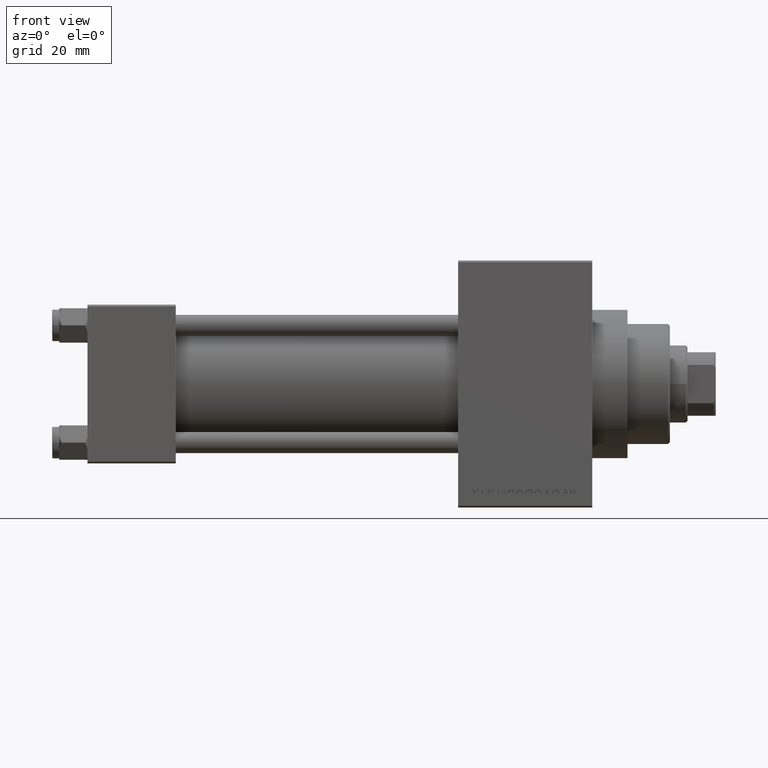
[diagram: clean part render]
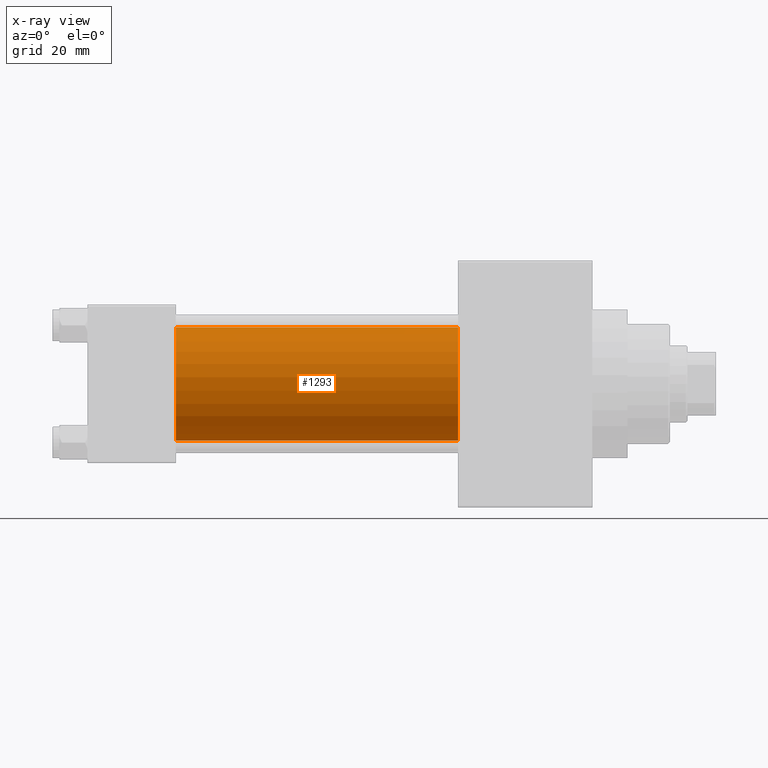
[diagram: x-ray — body ghosted, one internal face saturated and labeled with its STEP entity id]
A machine part, front view, then the same camera in x-ray: the body is ghosted and one INTERNAL B-rep face — a face not visible from any outside direction — is saturated and labeled: STEP entity #1293.
In plain terms, the highlighted cylindrical surface (partial cylindrical patch) has radius 16 mm, axis along (-1, -0, -0).
Its self-contained STEP definition (entity closure, byte-faithful):
#1293 = ADVANCED_FACE ( 'NONE', ( #7391 ), #35124, .F. ) ;
#3336 = AXIS2_PLACEMENT_3D ( 'NONE', #13710, #28862, #44032 ) ;
#3654 = DIRECTION ( 'NONE',  ( -1.000000000000000000, -0.000000000000000000, -0.000000000000000000 ) ) ;
#7157 = VERTEX_POINT ( 'NONE', #12176 ) ;
#7391 = FACE_OUTER_BOUND ( 'NONE', #12604, .T. ) ;
#7745 = DIRECTION ( 'NONE',  ( -1.000000000000000000, -0.000000000000000000, -0.000000000000000000 ) ) ;
#8769 = DIRECTION ( 'NONE',  ( -1.000000000000000000, -0.000000000000000000, -0.000000000000000000 ) ) ;
#10067 = VERTEX_POINT ( 'NONE', #38341 ) ;
#12176 = CARTESIAN_POINT ( 'NONE',  ( 25.00000000000000000, -6.426503353294456087E-16, -16.00000000000000000 ) ) ;
#12501 = ORIENTED_EDGE ( 'NONE', *, *, #24903, .F. ) ;
#12604 = EDGE_LOOP ( 'NONE', ( #28633, #28646, #25649, #12501 ) ) ;
#13710 = CARTESIAN_POINT ( 'NONE',  ( 25.00000000000000000, -2.602085213965210642E-15, 0.000000000000000000 ) ) ;
#16139 = VECTOR ( 'NONE', #8769, 1000.000000000000000 ) ;
#16258 = EDGE_CURVE ( 'NONE', #46742, #7157, #39841, .T. ) ;
#17777 = DIRECTION ( 'NONE',  ( 1.000000000000000000, 0.000000000000000000, 0.000000000000000000 ) ) ;
#22301 = DIRECTION ( 'NONE',  ( 0.000000000000000000, 0.000000000000000000, 1.000000000000000000 ) ) ;
#23103 = EDGE_CURVE ( 'NONE', #25173, #7157, #31871, .T. ) ;
#23373 = CIRCLE ( 'NONE', #45590, 16.00000000000000000 ) ;
#24903 = EDGE_CURVE ( 'NONE', #10067, #46742, #34082, .T. ) ;
#25173 = VERTEX_POINT ( 'NONE', #26761 ) ;
#25451 = EDGE_CURVE ( 'NONE', #10067, #25173, #23373, .T. ) ;
#25649 = ORIENTED_EDGE ( 'NONE', *, *, #16258, .F. ) ;
#26761 = CARTESIAN_POINT ( 'NONE',  ( 105.0000000000000142, -6.426503353294456087E-16, -16.00000000000000000 ) ) ;
#28633 = ORIENTED_EDGE ( 'NONE', *, *, #25451, .T. ) ;
#28646 = ORIENTED_EDGE ( 'NONE', *, *, #23103, .T. ) ;
#28862 = DIRECTION ( 'NONE',  ( 1.000000000000000000, 0.000000000000000000, 0.000000000000000000 ) ) ;
#30360 = CARTESIAN_POINT ( 'NONE',  ( 105.0000000000000142, -2.602085213965210642E-15, 16.00000000000000000 ) ) ;
#31619 = CARTESIAN_POINT ( 'NONE',  ( 105.0000000000000142, -6.426503353294456087E-16, -16.00000000000000000 ) ) ;
#31871 = LINE ( 'NONE', #31619, #16139 ) ;
#32691 = CARTESIAN_POINT ( 'NONE',  ( 105.0000000000000142, -2.602085213965210642E-15, 0.000000000000000000 ) ) ;
#34082 = LINE ( 'NONE', #30360, #48766 ) ;
#35124 = CYLINDRICAL_SURFACE ( 'NONE', #44861, 16.00000000000000000 ) ;
#38341 = CARTESIAN_POINT ( 'NONE',  ( 105.0000000000000142, -2.602085213965210642E-15, 16.00000000000000000 ) ) ;
#39841 = CIRCLE ( 'NONE', #3336, 16.00000000000000000 ) ;
#42598 = CARTESIAN_POINT ( 'NONE',  ( 105.0000000000000142, -2.602085213965210642E-15, 0.000000000000000000 ) ) ;
#44032 = DIRECTION ( 'NONE',  ( 0.000000000000000000, 0.000000000000000000, -1.000000000000000000 ) ) ;
#44861 = AXIS2_PLACEMENT_3D ( 'NONE', #42598, #3654, #22301 ) ;
#45590 = AXIS2_PLACEMENT_3D ( 'NONE', #32691, #17777, #48118 ) ;
#46350 = CARTESIAN_POINT ( 'NONE',  ( 25.00000000000000000, -2.602085213965210642E-15, 16.00000000000000000 ) ) ;
#46742 = VERTEX_POINT ( 'NONE', #46350 ) ;
#48118 = DIRECTION ( 'NONE',  ( 0.000000000000000000, 0.000000000000000000, -1.000000000000000000 ) ) ;
#48766 = VECTOR ( 'NONE', #7745, 1000.000000000000000 ) ;